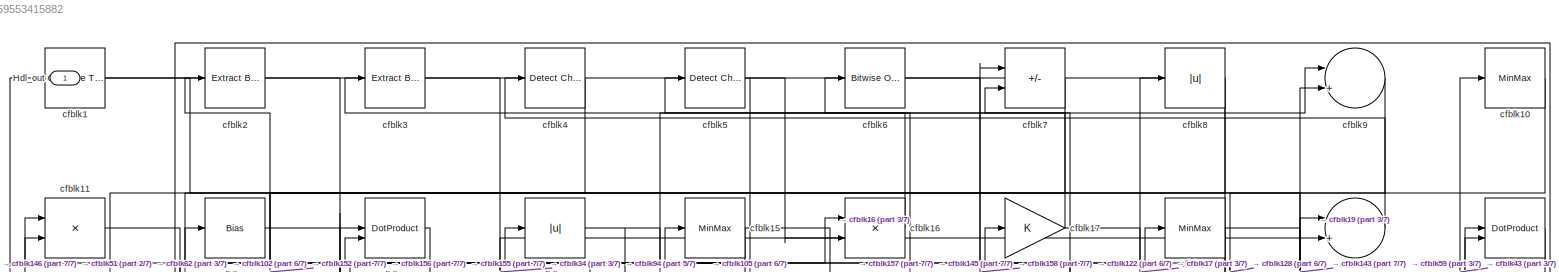
[diagram: root canvas - part 1/7, full width, top band]
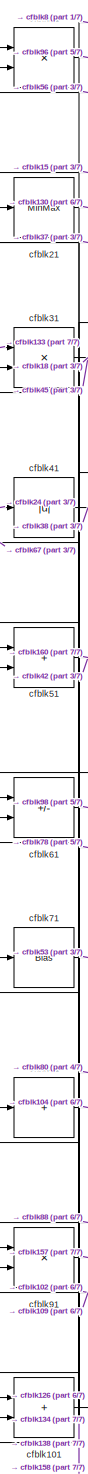
[diagram: root canvas - part 2/7, middle left region]
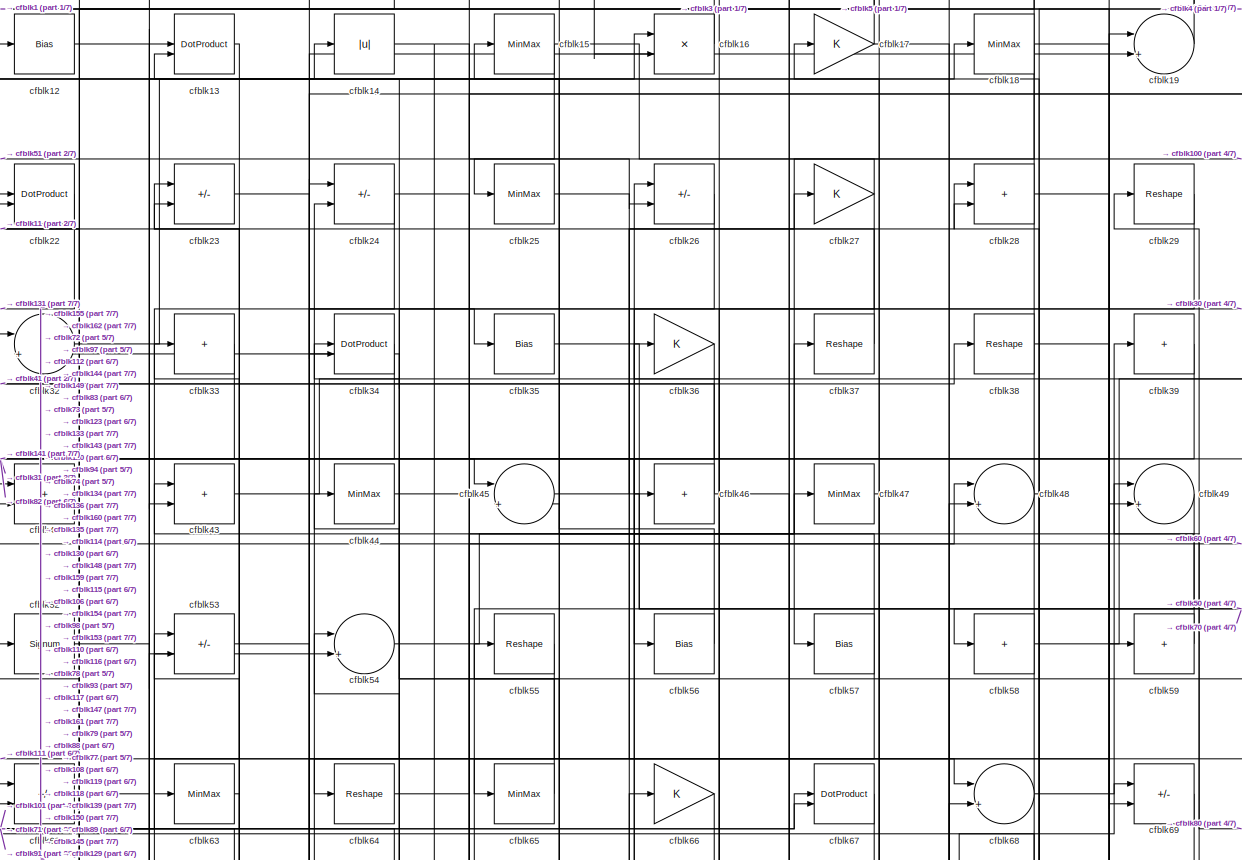
[diagram: root canvas - part 3/7, full width, top band]
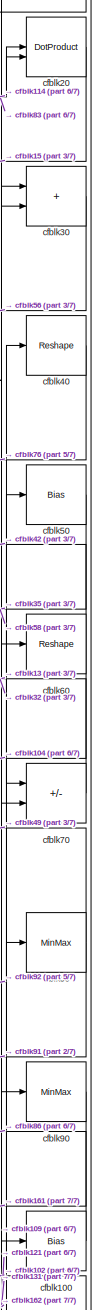
[diagram: root canvas - part 4/7, top right region]
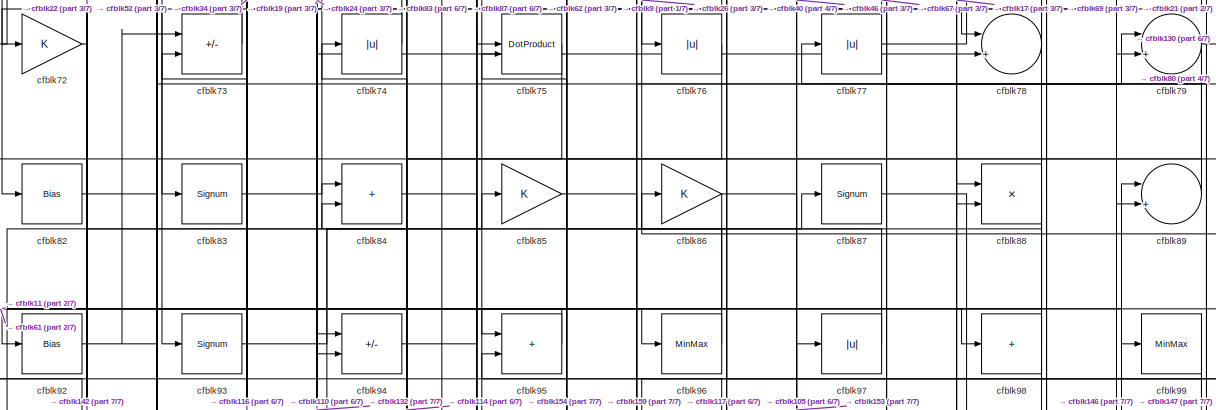
[diagram: root canvas - part 5/7, full width, middle band]
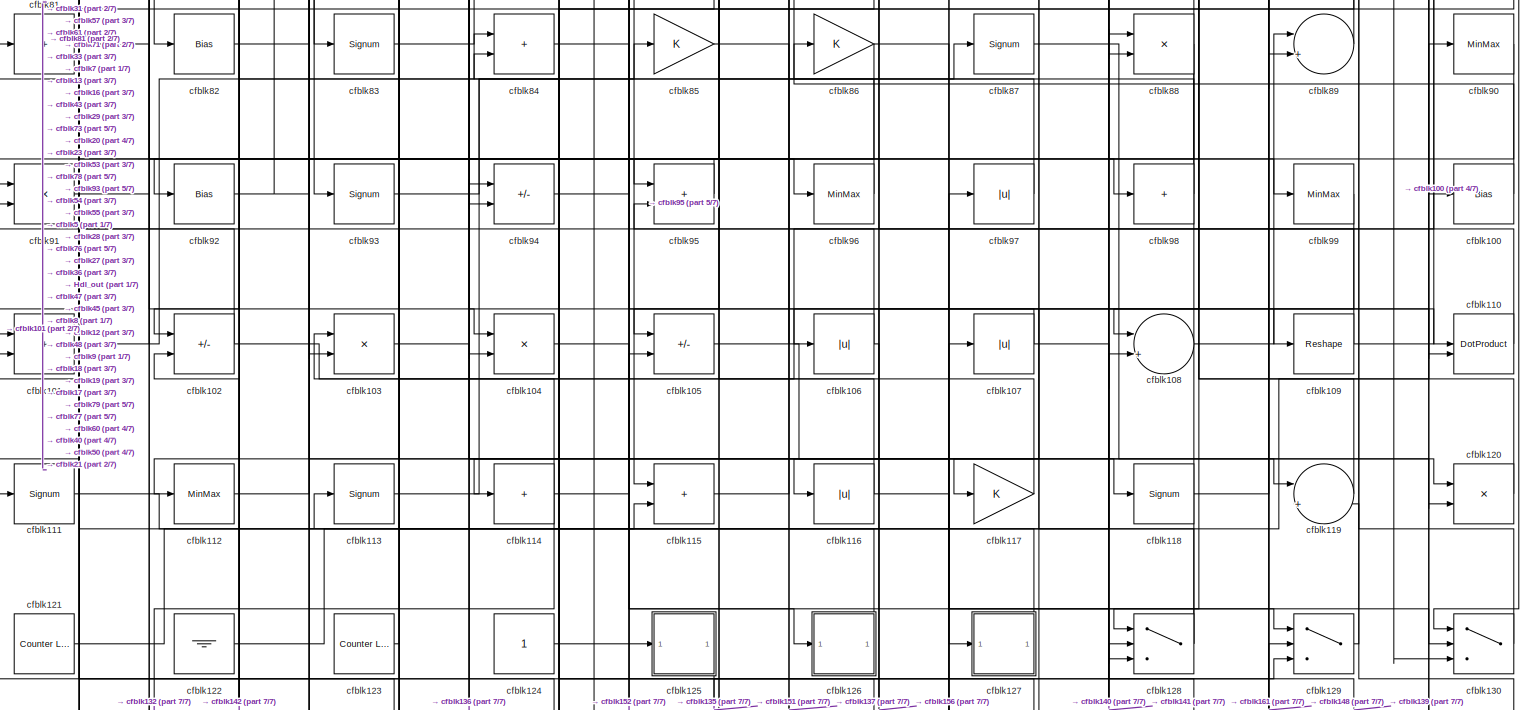
[diagram: root canvas - part 6/7, full width, middle band]
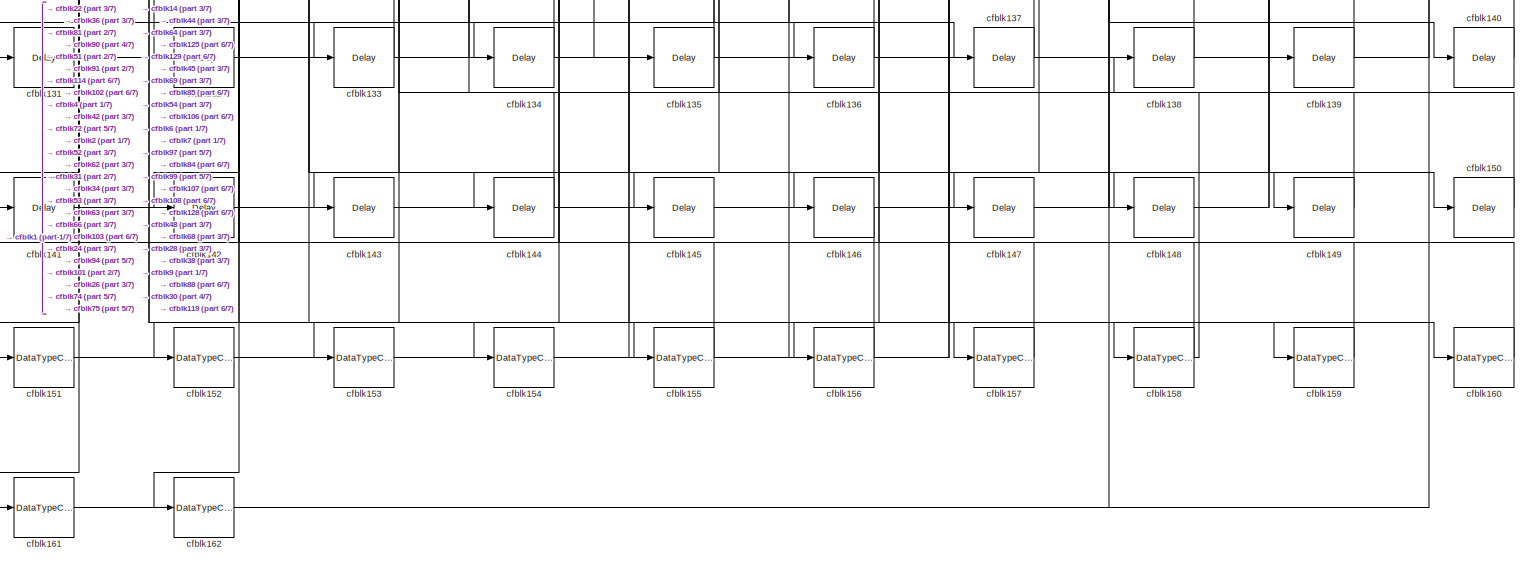
[diagram: root canvas - part 7/7, full width, bottom band]
MODEL slx_259553415882
KIND model
CONFIG AbsTol = auto
CONFIG EnableMultiTasking = off
CONFIG FixedStep = auto
CONFIG MaxStep = auto
CONFIG MinStep = auto
CONFIG RelTol = 1e-3
CONFIG SampleTimeConstraint = Unconstrained
CONFIG SolverName = VariableStepAuto
CONFIG StartTime = 0.0
CONFIG StopTime = 10.0
BLOCK [Outport] Hdl_out
  OutDataTypeStr = uint8
BLOCK [Reference] cfblk1  REF=hdlsllib/Logic and Bit
Operations/Compare
To Constant
  SourceBlock = hdlsllib/Logic and Bit\nOperations/Compare\nTo Constant
  SourceType = Compare To Constant
BLOCK [MinMax] cfblk10
  OutDataTypeStr = uint8
BLOCK [Bias] cfblk100
  Bias = 0.0
  SaturateOnIntegerOverflow = off
BLOCK [Sum] cfblk101
  IconShape = rectangular
  OutDataTypeStr = uint8
BLOCK [Sum] cfblk102
  IconShape = rectangular
  Inputs = +-
  OutDataTypeStr = uint8
BLOCK [Product] cfblk103
  Inputs = */
  OutDataTypeStr = uint8
  RndMeth = Zero
  SaturateOnIntegerOverflow = on
BLOCK [Product] cfblk104
  Inputs = */
  OutDataTypeStr = uint8
  RndMeth = Zero
  SaturateOnIntegerOverflow = on
BLOCK [Sum] cfblk105
  IconShape = rectangular
  Inputs = +-
  OutDataTypeStr = uint8
BLOCK [Abs] cfblk106
  OutDataTypeStr = uint8
  SaturateOnIntegerOverflow = off
BLOCK [Abs] cfblk107
  OutDataTypeStr = uint8
  SaturateOnIntegerOverflow = off
BLOCK [Sum] cfblk108
  Inputs = |++
  OutDataTypeStr = uint8
BLOCK [Reshape] cfblk109
BLOCK [Product] cfblk11
  Inputs = */
  OutDataTypeStr = uint8
  RndMeth = Zero
  SaturateOnIntegerOverflow = on
BLOCK [DotProduct] cfblk110
  OutDataTypeStr = uint8
BLOCK [Signum] cfblk111
BLOCK [MinMax] cfblk112
  OutDataTypeStr = uint8
BLOCK [Signum] cfblk113
BLOCK [Sum] cfblk114
  IconShape = rectangular
  Inputs = +
  OutDataTypeStr = uint8
BLOCK [Sum] cfblk115
  IconShape = rectangular
  OutDataTypeStr = uint8
BLOCK [Abs] cfblk116
  OutDataTypeStr = uint8
  SaturateOnIntegerOverflow = off
BLOCK [Gain] cfblk117
  OutDataTypeStr = uint8
BLOCK [Signum] cfblk118
BLOCK [Sum] cfblk119
  Inputs = |++
  OutDataTypeStr = uint8
BLOCK [Bias] cfblk12
  Bias = 0.0
  SaturateOnIntegerOverflow = off
BLOCK [Product] cfblk120
  Inputs = */
  OutDataTypeStr = uint8
  RndMeth = Zero
  SaturateOnIntegerOverflow = on
BLOCK [Reference] cfblk121  REF=hdlsllib/Sources/Counter
Limited
  SourceBlock = hdlsllib/Sources/Counter\nLimited
  SourceType = Counter Limited
BLOCK [Ground] cfblk122
BLOCK [Reference] cfblk123  REF=hdlsllib/Sources/Counter
Limited
  SourceBlock = hdlsllib/Sources/Counter\nLimited
  SourceType = Counter Limited
BLOCK [Constant] cfblk124
  OutDataTypeStr = uint8
  SampleTime = -1
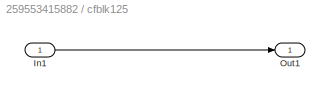
BLOCK [SubSystem] cfblk125
  LibrarySourceBlock = hdlsllib/Ports &\nSubsystems/Subsystem
BLOCK [Inport] cfblk125/In1
BLOCK [Outport] cfblk125/Out1
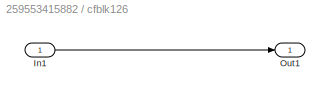
BLOCK [SubSystem] cfblk126
  LibrarySourceBlock = hdlsllib/Ports &\nSubsystems/Subsystem
BLOCK [Inport] cfblk126/In1
BLOCK [Outport] cfblk126/Out1
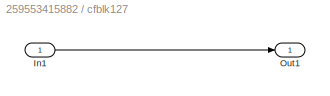
BLOCK [SubSystem] cfblk127
  LibrarySourceBlock = hdlsllib/Ports &\nSubsystems/Subsystem
BLOCK [Inport] cfblk127/In1
BLOCK [Outport] cfblk127/Out1
BLOCK [Switch] cfblk128
  InputSameDT = off
  OutDataTypeStr = uint8
  SaturateOnIntegerOverflow = off
BLOCK [Switch] cfblk129
  InputSameDT = off
  OutDataTypeStr = uint8
  SaturateOnIntegerOverflow = off
BLOCK [DotProduct] cfblk13
  OutDataTypeStr = uint8
BLOCK [Switch] cfblk130
  InputSameDT = off
  OutDataTypeStr = uint8
  SaturateOnIntegerOverflow = off
BLOCK [Delay] cfblk131
  InputPortMap = u0
  SampleTime = 1
BLOCK [Delay] cfblk132
  InputPortMap = u0
  SampleTime = 1
BLOCK [Delay] cfblk133
  InputPortMap = u0
  SampleTime = 1
BLOCK [Delay] cfblk134
  InputPortMap = u0
  SampleTime = 1
BLOCK [Delay] cfblk135
  InputPortMap = u0
  SampleTime = 1
BLOCK [Delay] cfblk136
  InputPortMap = u0
  SampleTime = 1
BLOCK [Delay] cfblk137
  InputPortMap = u0
  SampleTime = 1
BLOCK [Delay] cfblk138
  InputPortMap = u0
  SampleTime = 1
BLOCK [Delay] cfblk139
  InputPortMap = u0
  SampleTime = 1
BLOCK [Abs] cfblk14
  OutDataTypeStr = uint8
  SaturateOnIntegerOverflow = off
BLOCK [Delay] cfblk140
  InputPortMap = u0
  SampleTime = 1
BLOCK [Delay] cfblk141
  InputPortMap = u0
  SampleTime = 1
BLOCK [Delay] cfblk142
  InputPortMap = u0
  SampleTime = 1
BLOCK [Delay] cfblk143
  InputPortMap = u0
  SampleTime = 1
BLOCK [Delay] cfblk144
  InputPortMap = u0
  SampleTime = 1
BLOCK [Delay] cfblk145
  InputPortMap = u0
  SampleTime = 1
BLOCK [Delay] cfblk146
  InputPortMap = u0
  SampleTime = 1
BLOCK [Delay] cfblk147
  InputPortMap = u0
  SampleTime = 1
BLOCK [Delay] cfblk148
  InputPortMap = u0
  SampleTime = 1
BLOCK [Delay] cfblk149
  InputPortMap = u0
  SampleTime = 1
BLOCK [MinMax] cfblk15
  OutDataTypeStr = uint8
BLOCK [Delay] cfblk150
  InputPortMap = u0
  SampleTime = 1
BLOCK [DataTypeConversion] cfblk151
  OutDataTypeStr = uint8
  RndMeth = Floor
  SaturateOnIntegerOverflow = off
BLOCK [DataTypeConversion] cfblk152
  OutDataTypeStr = uint8
  RndMeth = Floor
  SaturateOnIntegerOverflow = off
BLOCK [DataTypeConversion] cfblk153
  OutDataTypeStr = uint8
  RndMeth = Floor
  SaturateOnIntegerOverflow = off
BLOCK [DataTypeConversion] cfblk154
  OutDataTypeStr = uint8
  RndMeth = Floor
  SaturateOnIntegerOverflow = off
BLOCK [DataTypeConversion] cfblk155
  OutDataTypeStr = uint8
  RndMeth = Floor
  SaturateOnIntegerOverflow = off
BLOCK [DataTypeConversion] cfblk156
  OutDataTypeStr = uint8
  RndMeth = Floor
  SaturateOnIntegerOverflow = off
BLOCK [DataTypeConversion] cfblk157
  OutDataTypeStr = uint8
  RndMeth = Floor
  SaturateOnIntegerOverflow = off
BLOCK [DataTypeConversion] cfblk158
  OutDataTypeStr = uint8
  RndMeth = Floor
  SaturateOnIntegerOverflow = off
BLOCK [DataTypeConversion] cfblk159
  OutDataTypeStr = uint8
  RndMeth = Floor
  SaturateOnIntegerOverflow = off
BLOCK [Product] cfblk16
  Inputs = */
  OutDataTypeStr = uint8
  RndMeth = Zero
  SaturateOnIntegerOverflow = on
BLOCK [DataTypeConversion] cfblk160
  OutDataTypeStr = uint8
  RndMeth = Floor
  SaturateOnIntegerOverflow = off
BLOCK [DataTypeConversion] cfblk161
  OutDataTypeStr = uint8
  RndMeth = Floor
  SaturateOnIntegerOverflow = off
BLOCK [DataTypeConversion] cfblk162
  OutDataTypeStr = uint8
  RndMeth = Floor
  SaturateOnIntegerOverflow = off
BLOCK [Gain] cfblk17
  OutDataTypeStr = uint8
BLOCK [MinMax] cfblk18
  OutDataTypeStr = uint8
BLOCK [Sum] cfblk19
  Inputs = |++
  OutDataTypeStr = uint8
BLOCK [Reference] cfblk2  REF=simulink/Logic and Bit
Operations/Extract Bits
  LibrarySourceBlock = hdlsllib/Logic and Bit\nOperations/Extract Bits
  SourceBlock = simulink/Logic and Bit\nOperations/Extract Bits
  SourceType = Extract Bits
BLOCK [DotProduct] cfblk20
  OutDataTypeStr = uint8
BLOCK [MinMax] cfblk21
  OutDataTypeStr = uint8
BLOCK [DotProduct] cfblk22
  OutDataTypeStr = uint8
BLOCK [Sum] cfblk23
  IconShape = rectangular
  Inputs = +-
  OutDataTypeStr = uint8
BLOCK [Sum] cfblk24
  IconShape = rectangular
  Inputs = +-
  OutDataTypeStr = uint8
BLOCK [MinMax] cfblk25
  OutDataTypeStr = uint8
BLOCK [Sum] cfblk26
  IconShape = rectangular
  Inputs = +-
  OutDataTypeStr = uint8
BLOCK [Gain] cfblk27
  OutDataTypeStr = uint8
BLOCK [Sum] cfblk28
  IconShape = rectangular
  OutDataTypeStr = uint8
BLOCK [Reshape] cfblk29
BLOCK [Reference] cfblk3  REF=simulink/Logic and Bit
Operations/Extract Bits
  LibrarySourceBlock = hdlsllib/Logic and Bit\nOperations/Extract Bits
  SourceBlock = simulink/Logic and Bit\nOperations/Extract Bits
  SourceType = Extract Bits
BLOCK [Sum] cfblk30
  IconShape = rectangular
  OutDataTypeStr = uint8
BLOCK [Product] cfblk31
  Inputs = */
  OutDataTypeStr = uint8
  RndMeth = Zero
  SaturateOnIntegerOverflow = on
BLOCK [Sum] cfblk32
  Inputs = |++
  OutDataTypeStr = uint8
BLOCK [Sum] cfblk33
  IconShape = rectangular
  Inputs = +
  OutDataTypeStr = uint8
BLOCK [DotProduct] cfblk34
  OutDataTypeStr = uint8
BLOCK [Bias] cfblk35
  Bias = 0.0
  SaturateOnIntegerOverflow = off
BLOCK [Gain] cfblk36
  OutDataTypeStr = uint8
BLOCK [Reshape] cfblk37
BLOCK [Reshape] cfblk38
BLOCK [Sum] cfblk39
  IconShape = rectangular
  Inputs = +
  OutDataTypeStr = uint8
BLOCK [Reference] cfblk4  REF=simulink/Logic and Bit
Operations/Detect
Change
  LibrarySourceBlock = hdlsllib/Logic and Bit\nOperations/Detect\nChange
  SourceBlock = simulink/Logic and Bit\nOperations/Detect\nChange
  SourceType = Detect Change
BLOCK [Reshape] cfblk40
BLOCK [Abs] cfblk41
  OutDataTypeStr = uint8
  SaturateOnIntegerOverflow = off
BLOCK [Sum] cfblk42
  IconShape = rectangular
  OutDataTypeStr = uint8
BLOCK [Sum] cfblk43
  IconShape = rectangular
  OutDataTypeStr = uint8
BLOCK [MinMax] cfblk44
  OutDataTypeStr = uint8
BLOCK [Sum] cfblk45
  Inputs = |++
  OutDataTypeStr = uint8
BLOCK [Sum] cfblk46
  IconShape = rectangular
  Inputs = +
  OutDataTypeStr = uint8
BLOCK [MinMax] cfblk47
  OutDataTypeStr = uint8
BLOCK [Sum] cfblk48
  Inputs = |++
  OutDataTypeStr = uint8
BLOCK [Sum] cfblk49
  Inputs = |++
  OutDataTypeStr = uint8
BLOCK [Reference] cfblk5  REF=simulink/Logic and Bit
Operations/Detect
Change
  LibrarySourceBlock = hdlsllib/Logic and Bit\nOperations/Detect\nChange
  SourceBlock = simulink/Logic and Bit\nOperations/Detect\nChange
  SourceType = Detect Change
BLOCK [Bias] cfblk50
  Bias = 0.0
  SaturateOnIntegerOverflow = off
BLOCK [Sum] cfblk51
  IconShape = rectangular
  OutDataTypeStr = uint8
BLOCK [Signum] cfblk52
BLOCK [Sum] cfblk53
  IconShape = rectangular
  Inputs = +-
  OutDataTypeStr = uint8
BLOCK [Sum] cfblk54
  Inputs = |++
  OutDataTypeStr = uint8
BLOCK [Reshape] cfblk55
BLOCK [Bias] cfblk56
  Bias = 0.0
  SaturateOnIntegerOverflow = off
BLOCK [Bias] cfblk57
  Bias = 0.0
  SaturateOnIntegerOverflow = off
BLOCK [Sum] cfblk58
  IconShape = rectangular
  Inputs = +
  OutDataTypeStr = uint8
BLOCK [Sum] cfblk59
  IconShape = rectangular
  Inputs = +
  OutDataTypeStr = uint8
BLOCK [Reference] cfblk6  REF=simulink/Logic and Bit
Operations/Bitwise
Operator
  LibrarySourceBlock = hdlsllib/Logic and Bit\nOperations/Bitwise\nOperator
  SourceBlock = simulink/Logic and Bit\nOperations/Bitwise\nOperator
  SourceType = Bitwise Operator
BLOCK [Reshape] cfblk60
BLOCK [Sum] cfblk61
  IconShape = rectangular
  Inputs = +-
  OutDataTypeStr = uint8
BLOCK [Sum] cfblk62
  IconShape = rectangular
  Inputs = +-
  OutDataTypeStr = uint8
BLOCK [MinMax] cfblk63
  OutDataTypeStr = uint8
BLOCK [Reshape] cfblk64
BLOCK [MinMax] cfblk65
  OutDataTypeStr = uint8
BLOCK [Gain] cfblk66
  OutDataTypeStr = uint8
BLOCK [DotProduct] cfblk67
  OutDataTypeStr = uint8
BLOCK [Sum] cfblk68
  Inputs = |++
  OutDataTypeStr = uint8
BLOCK [Sum] cfblk69
  IconShape = rectangular
  Inputs = +-
  OutDataTypeStr = uint8
BLOCK [Sum] cfblk7
  IconShape = rectangular
  Inputs = +-
  OutDataTypeStr = uint8
BLOCK [Sum] cfblk70
  IconShape = rectangular
  Inputs = +-
  OutDataTypeStr = uint8
BLOCK [Bias] cfblk71
  Bias = 0.0
  SaturateOnIntegerOverflow = off
BLOCK [Gain] cfblk72
  OutDataTypeStr = uint8
BLOCK [Sum] cfblk73
  IconShape = rectangular
  Inputs = +-
  OutDataTypeStr = uint8
BLOCK [Abs] cfblk74
  OutDataTypeStr = uint8
  SaturateOnIntegerOverflow = off
BLOCK [DotProduct] cfblk75
  OutDataTypeStr = uint8
BLOCK [Abs] cfblk76
  OutDataTypeStr = uint8
  SaturateOnIntegerOverflow = off
BLOCK [Abs] cfblk77
  OutDataTypeStr = uint8
  SaturateOnIntegerOverflow = off
BLOCK [Sum] cfblk78
  Inputs = |++
  OutDataTypeStr = uint8
BLOCK [Sum] cfblk79
  Inputs = |++
  OutDataTypeStr = uint8
BLOCK [Abs] cfblk8
  OutDataTypeStr = uint8
  SaturateOnIntegerOverflow = off
BLOCK [MinMax] cfblk80
  OutDataTypeStr = uint8
BLOCK [Sum] cfblk81
  IconShape = rectangular
  Inputs = +
  OutDataTypeStr = uint8
BLOCK [Bias] cfblk82
  Bias = 0.0
  SaturateOnIntegerOverflow = off
BLOCK [Signum] cfblk83
BLOCK [Sum] cfblk84
  IconShape = rectangular
  OutDataTypeStr = uint8
BLOCK [Gain] cfblk85
  OutDataTypeStr = uint8
BLOCK [Gain] cfblk86
  OutDataTypeStr = uint8
BLOCK [Signum] cfblk87
BLOCK [Product] cfblk88
  Inputs = */
  OutDataTypeStr = uint8
  RndMeth = Zero
  SaturateOnIntegerOverflow = on
BLOCK [Sum] cfblk89
  Inputs = |++
  OutDataTypeStr = uint8
BLOCK [Sum] cfblk9
  Inputs = |++
  OutDataTypeStr = uint8
BLOCK [MinMax] cfblk90
  OutDataTypeStr = uint8
BLOCK [Product] cfblk91
  Inputs = */
  OutDataTypeStr = uint8
  RndMeth = Zero
  SaturateOnIntegerOverflow = on
BLOCK [Bias] cfblk92
  Bias = 0.0
  SaturateOnIntegerOverflow = off
BLOCK [Signum] cfblk93
BLOCK [Sum] cfblk94
  IconShape = rectangular
  Inputs = +-
  OutDataTypeStr = uint8
BLOCK [Sum] cfblk95
  IconShape = rectangular
  OutDataTypeStr = uint8
BLOCK [MinMax] cfblk96
  OutDataTypeStr = uint8
BLOCK [Abs] cfblk97
  OutDataTypeStr = uint8
  SaturateOnIntegerOverflow = off
BLOCK [Sum] cfblk98
  IconShape = rectangular
  Inputs = +
  OutDataTypeStr = uint8
BLOCK [MinMax] cfblk99
  OutDataTypeStr = uint8
LINE cfblk100:1 -> cfblk86:1
NET cfblk101:1 -> cfblk24:2, cfblk41:1, cfblk67:1
NET cfblk102:1 -> cfblk40:1, cfblk71:1
LINE cfblk103:1 -> cfblk136:1
LINE cfblk104:1 -> cfblk126:1
NET cfblk105:1 -> cfblk127:1, cfblk79:1
NET cfblk106:1 -> cfblk156:1, cfblk55:1
NET cfblk107:1 -> cfblk106:1, cfblk140:1
LINE cfblk108:1 -> cfblk89:1
NET cfblk109:1 -> cfblk31:2, cfblk50:1
LINE cfblk10:1 -> cfblk62:1
LINE cfblk110:1 -> cfblk36:1
LINE cfblk111:1 -> cfblk115:2
LINE cfblk112:1 -> cfblk13:1
LINE cfblk113:1 -> cfblk85:1
NET cfblk114:1 -> cfblk132:1, cfblk20:2, cfblk23:2
LINE cfblk115:1 -> cfblk28:1
NET cfblk116:1 -> cfblk128:3, cfblk73:2
NET cfblk117:1 -> cfblk112:1, cfblk95:2
LINE cfblk118:1 -> cfblk19:1
LINE cfblk119:1 -> cfblk12:1
LINE cfblk11:1 -> cfblk96:1
LINE cfblk120:1 -> cfblk28:2
LINE cfblk121:1 -> cfblk60:1
LINE cfblk122:1 -> cfblk8:1
LINE cfblk123:1 -> cfblk23:1
LINE cfblk124:1 -> cfblk105:2
LINE cfblk125/In1:1 -> cfblk125/Out1:1
LINE cfblk125:1 -> cfblk151:1
LINE cfblk126/In1:1 -> cfblk126/Out1:1
NET cfblk126:1 -> cfblk113:1, cfblk61:2
LINE cfblk127/In1:1 -> cfblk127/Out1:1
LINE cfblk127:1 -> cfblk103:1
NET cfblk128:1 -> Hdl_out:1, cfblk7:2
LINE cfblk129:1 -> cfblk29:1
NET cfblk12:1 -> cfblk118:1, cfblk46:1, cfblk54:2, cfblk68:1
LINE cfblk130:1 -> cfblk77:1
LINE cfblk131:1 -> cfblk30:1
LINE cfblk132:1 -> cfblk94:1
LINE cfblk133:1 -> cfblk31:1
LINE cfblk134:1 -> cfblk101:2
LINE cfblk135:1 -> cfblk129:3
LINE cfblk136:1 -> cfblk54:1
LINE cfblk137:1 -> cfblk84:2
LINE cfblk138:1 -> cfblk91:2
LINE cfblk139:1 -> cfblk88:1
LINE cfblk13:1 -> cfblk63:1
LINE cfblk140:1 -> cfblk119:2
LINE cfblk141:1 -> cfblk128:2
LINE cfblk142:1 -> cfblk102:2
LINE cfblk143:1 -> cfblk9:2
LINE cfblk144:1 -> cfblk24:1
LINE cfblk145:1 -> cfblk7:1
LINE cfblk146:1 -> cfblk1:1
LINE cfblk147:1 -> cfblk48:2
LINE cfblk148:1 -> cfblk129:2
LINE cfblk149:1 -> cfblk53:2
NET cfblk14:1 -> cfblk135:1, cfblk26:2
LINE cfblk150:1 -> cfblk45:2
LINE cfblk151:1 -> cfblk107:1
LINE cfblk152:1 -> cfblk125:1
LINE cfblk153:1 -> cfblk97:1
LINE cfblk154:1 -> cfblk66:1
LINE cfblk155:1 -> cfblk22:2
LINE cfblk156:1 -> cfblk2:1
LINE cfblk157:1 -> cfblk6:1
NET cfblk158:1 -> cfblk138:1, cfblk81:1
LINE cfblk159:1 -> cfblk74:1
NET cfblk15:1 -> cfblk100:1, cfblk51:2
LINE cfblk160:1 -> cfblk44:1
NET cfblk161:1 -> cfblk108:2, cfblk68:2
LINE cfblk162:1 -> cfblk90:1
LINE cfblk16:1 -> cfblk3:1
NET cfblk17:1 -> cfblk5:1, cfblk79:2
NET cfblk18:1 -> cfblk57:1, cfblk89:2
LINE cfblk19:1 -> cfblk4:1
LINE cfblk1:1 -> cfblk59:1
LINE cfblk20:1 -> cfblk70:2
LINE cfblk21:1 -> cfblk130:1
LINE cfblk22:1 -> cfblk131:1
NET cfblk23:1 -> cfblk119:1, cfblk35:1
NET cfblk24:1 -> cfblk49:2, cfblk94:2
LINE cfblk25:1 -> cfblk69:2
LINE cfblk26:1 -> cfblk134:1
NET cfblk27:1 -> cfblk116:1, cfblk25:1
LINE cfblk28:1 -> cfblk139:1
LINE cfblk29:1 -> cfblk83:1
LINE cfblk2:1 -> cfblk155:1
LINE cfblk30:1 -> cfblk56:1
NET cfblk31:1 -> cfblk18:1, cfblk45:1, cfblk61:1
LINE cfblk32:1 -> cfblk14:1
LINE cfblk33:1 -> cfblk82:1
NET cfblk34:1 -> cfblk143:1, cfblk72:1
LINE cfblk35:1 -> cfblk70:1
LINE cfblk36:1 -> cfblk141:1
LINE cfblk37:1 -> cfblk11:1
LINE cfblk38:1 -> cfblk150:1
LINE cfblk39:1 -> cfblk64:1
LINE cfblk3:1 -> cfblk34:2
LINE cfblk40:1 -> cfblk76:1
LINE cfblk41:1 -> cfblk38:1
LINE cfblk42:1 -> cfblk162:1
LINE cfblk43:1 -> cfblk10:1
LINE cfblk44:1 -> cfblk159:1
NET cfblk45:1 -> cfblk27:1, cfblk88:2
NET cfblk46:1 -> cfblk32:1, cfblk78:1
LINE cfblk47:1 -> cfblk117:1
LINE cfblk48:1 -> cfblk108:1
LINE cfblk49:1 -> cfblk65:1
LINE cfblk4:1 -> cfblk152:1
LINE cfblk50:1 -> cfblk58:1
NET cfblk51:1 -> cfblk160:1, cfblk42:1
LINE cfblk52:1 -> cfblk144:1
NET cfblk53:1 -> cfblk120:2, cfblk33:1
NET cfblk54:1 -> cfblk130:2, cfblk37:1, cfblk48:1
LINE cfblk55:1 -> cfblk115:1
LINE cfblk56:1 -> cfblk11:2
NET cfblk57:1 -> cfblk111:1, cfblk43:1
LINE cfblk58:1 -> cfblk30:2
LINE cfblk59:1 -> cfblk15:1
NET cfblk5:1 -> cfblk105:1, cfblk16:2
NET cfblk60:1 -> cfblk104:2, cfblk42:2
LINE cfblk61:1 -> cfblk98:1
LINE cfblk62:1 -> cfblk149:1
LINE cfblk63:1 -> cfblk133:1
NET cfblk64:1 -> cfblk148:1, cfblk47:1
LINE cfblk65:1 -> cfblk34:1
LINE cfblk66:1 -> cfblk153:1
LINE cfblk67:1 -> cfblk93:1
LINE cfblk68:1 -> cfblk39:1
LINE cfblk69:1 -> cfblk145:1
LINE cfblk6:1 -> cfblk158:1
NET cfblk70:1 -> cfblk13:2, cfblk32:2
LINE cfblk71:1 -> cfblk53:1
LINE cfblk72:1 -> cfblk142:1
LINE cfblk73:1 -> cfblk52:1
LINE cfblk74:1 -> cfblk62:2
LINE cfblk75:1 -> cfblk154:1
LINE cfblk76:1 -> cfblk114:1
NET cfblk77:1 -> cfblk69:1, cfblk99:1
LINE cfblk78:1 -> cfblk21:1
NET cfblk79:1 -> cfblk130:3, cfblk95:1
LINE cfblk7:1 -> cfblk102:1
NET cfblk80:1 -> cfblk49:1, cfblk91:1
LINE cfblk81:1 -> cfblk104:1
NET cfblk82:1 -> cfblk16:1, cfblk43:2
NET cfblk83:1 -> cfblk20:1, cfblk78:2, cfblk84:1
NET cfblk84:1 -> cfblk109:1, cfblk110:2
LINE cfblk85:1 -> cfblk137:1
NET cfblk86:1 -> cfblk103:2, cfblk129:1
LINE cfblk87:1 -> cfblk120:1
LINE cfblk88:1 -> cfblk101:1
LINE cfblk89:1 -> cfblk17:1
LINE cfblk8:1 -> cfblk51:1
LINE cfblk90:1 -> cfblk161:1
NET cfblk91:1 -> cfblk157:1, cfblk67:2
NET cfblk92:1 -> cfblk73:1, cfblk80:1
NET cfblk93:1 -> cfblk110:1, cfblk19:2, cfblk87:1
NET cfblk94:1 -> cfblk75:1, cfblk9:1
LINE cfblk95:1 -> cfblk92:1
LINE cfblk96:1 -> cfblk75:2
LINE cfblk97:1 -> cfblk22:1
LINE cfblk98:1 -> cfblk26:1
NET cfblk99:1 -> cfblk146:1, cfblk147:1
LINE cfblk9:1 -> cfblk128:1
note: NET lines group one-source signal fan-out (src -> all destinations, sorted); 1:1 wires keep LINE
